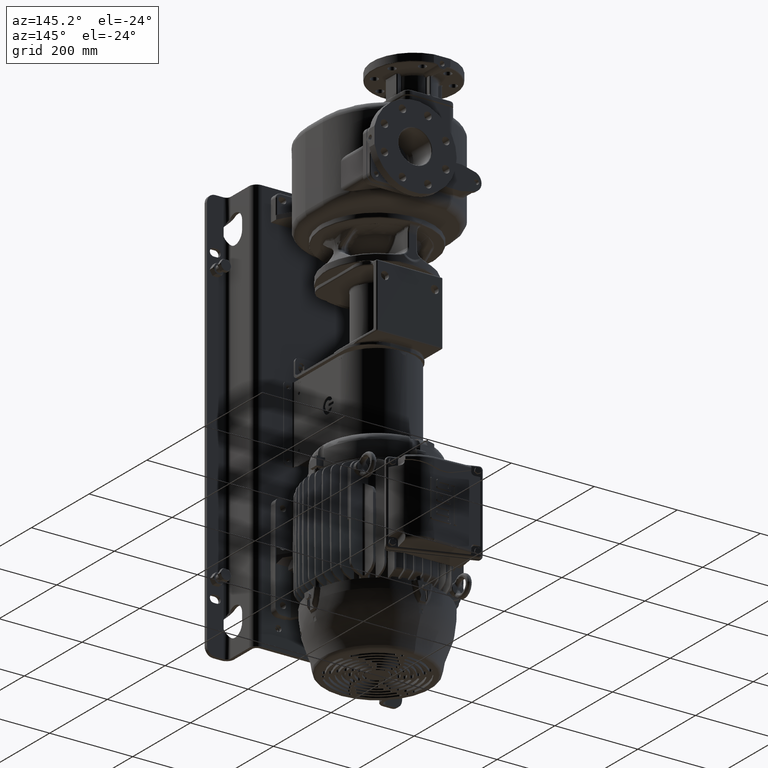
[diagram: clean part render]
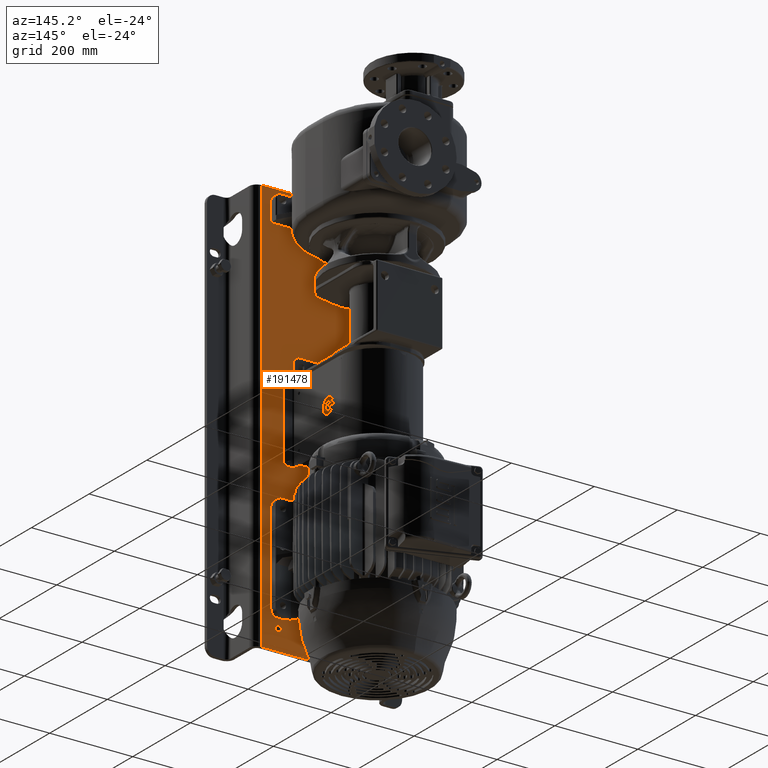
[diagram: same view with one face highlighted and labeled with its STEP entity id]
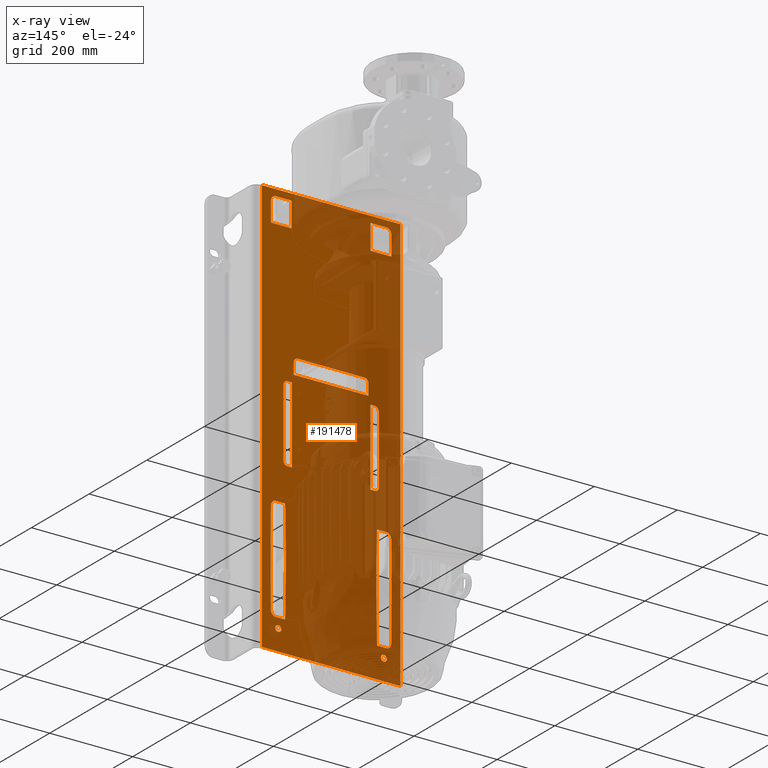
[diagram: x-ray of the same camera — body ghosted, the highlighted face saturated]
A machine part, auxiliary view. The second image highlights one B-rep face of the part: STEP entity #191478.
The next image is the same camera in x-ray: the body ghosted, the highlighted face saturated — about 63% of this face is hidden behind the body in this view.
In plain terms, the highlighted planar face has unit normal (0, 1, 0).
Its self-contained STEP definition (entity closure, byte-faithful):
#57438=DIRECTION('',(1.E0,0.E0,0.E0));
#57439=VECTOR('',#57438,5.E1);
#57440=CARTESIAN_POINT('',(9.5E1,0.E0,-4.5E1));
#57441=LINE('',#57440,#57439);
#57459=DIRECTION('',(0.E0,0.E0,-1.E0));
#57460=VECTOR('',#57459,1.E3);
#57461=CARTESIAN_POINT('',(-1.67E2,0.E0,3.05E1));
#57462=LINE('',#57461,#57460);
#57463=CARTESIAN_POINT('',(-1.27E2,0.E0,-9.195E2));
#57464=DIRECTION('',(0.E0,-1.E0,0.E0));
#57465=DIRECTION('',(1.E0,0.E0,0.E0));
#57466=AXIS2_PLACEMENT_3D('',#57463,#57464,#57465);
#57468=CARTESIAN_POINT('',(-1.27E2,0.E0,-9.195E2));
#57469=DIRECTION('',(0.E0,-1.E0,0.E0));
#57470=DIRECTION('',(-1.E0,0.E0,0.E0));
#57471=AXIS2_PLACEMENT_3D('',#57468,#57469,#57470);
#57473=CARTESIAN_POINT('',(1.27E2,0.E0,-9.195E2));
#57474=DIRECTION('',(0.E0,-1.E0,0.E0));
#57475=DIRECTION('',(1.E0,0.E0,0.E0));
#57476=AXIS2_PLACEMENT_3D('',#57473,#57474,#57475);
#57478=CARTESIAN_POINT('',(1.27E2,0.E0,-9.195E2));
#57479=DIRECTION('',(0.E0,-1.E0,0.E0));
#57480=DIRECTION('',(-1.E0,0.E0,0.E0));
#57481=AXIS2_PLACEMENT_3D('',#57478,#57479,#57480);
#57483=DIRECTION('',(1.E0,0.E0,0.E0));
#57484=VECTOR('',#57483,3.34E2);
#57485=CARTESIAN_POINT('',(-1.67E2,0.E0,3.05E1));
#57486=LINE('',#57485,#57484);
#57509=DIRECTION('',(0.E0,0.E0,-1.E0));
#57510=VECTOR('',#57509,1.E3);
#57511=CARTESIAN_POINT('',(1.67E2,0.E0,3.05E1));
#57512=LINE('',#57511,#57510);
#57527=DIRECTION('',(1.E0,0.E0,0.E0));
#57528=VECTOR('',#57527,3.34E2);
#57529=CARTESIAN_POINT('',(-1.67E2,0.E0,-9.695E2));
#57530=LINE('',#57529,#57528);
#61643=CARTESIAN_POINT('',(1.05E2,-5.684341886081E-13,-3.885E2));
#61644=DIRECTION('',(0.E0,-1.E0,0.E0));
#61645=DIRECTION('',(1.E0,0.E0,0.E0));
#61646=AXIS2_PLACEMENT_3D('',#61643,#61644,#61645);
#61648=DIRECTION('',(1.E0,-2.644252338458E-14,0.E0));
#61649=VECTOR('',#61648,1.04E1);
#61650=CARTESIAN_POINT('',(9.46E1,2.750022431997E-13,-3.785E2));
#61651=LINE('',#61650,#61649);
#61678=DIRECTION('',(0.E0,0.E0,1.E0));
#61679=VECTOR('',#61678,1.84E2);
#61680=CARTESIAN_POINT('',(9.46E1,2.804423360203E-13,-5.625E2));
#61681=LINE('',#61680,#61679);
#61695=DIRECTION('',(1.E0,-2.696560923272E-14,0.E0));
#61696=VECTOR('',#61695,1.04E1);
#61697=CARTESIAN_POINT('',(9.46E1,2.804423360203E-13,-5.625E2));
#61698=LINE('',#61697,#61696);
#61703=CARTESIAN_POINT('',(1.05E2,-5.684341886081E-13,-5.525E2));
#61704=DIRECTION('',(0.E0,-1.E0,0.E0));
#61705=DIRECTION('',(0.E0,0.E0,-1.E0));
#61706=AXIS2_PLACEMENT_3D('',#61703,#61704,#61705);
#61708=DIRECTION('',(0.E0,0.E0,1.E0));
#61709=VECTOR('',#61708,1.64E2);
#61710=CARTESIAN_POINT('',(1.15E2,0.E0,-5.525E2));
#61711=LINE('',#61710,#61709);
#64956=DIRECTION('',(0.E0,0.E0,1.E0));
#64957=VECTOR('',#64956,1.84E2);
#64958=CARTESIAN_POINT('',(-9.46E1,1.998401444325E-14,-5.625E2));
#64959=LINE('',#64958,#64957);
#65032=CARTESIAN_POINT('',(-1.05E2,-4.547473508865E-13,-3.885E2));
#65033=DIRECTION('',(0.E0,-1.E0,0.E0));
#65034=DIRECTION('',(3.765876499529E-13,0.E0,1.E0));
#65035=AXIS2_PLACEMENT_3D('',#65032,#65033,#65034);
#65037=DIRECTION('',(0.E0,0.E0,1.E0));
#65038=VECTOR('',#65037,1.64E2);
#65039=CARTESIAN_POINT('',(-1.15E2,0.E0,-5.525E2));
#65040=LINE('',#65039,#65038);
#65049=CARTESIAN_POINT('',(-1.05E2,-4.547473508865E-13,-5.525E2));
#65050=DIRECTION('',(0.E0,-1.E0,0.E0));
#65051=DIRECTION('',(-1.E0,0.E0,0.E0));
#65052=AXIS2_PLACEMENT_3D('',#65049,#65050,#65051);
#65054=DIRECTION('',(1.E0,0.E0,0.E0));
#65055=VECTOR('',#65054,1.04E1);
#65056=CARTESIAN_POINT('',(-1.05E2,0.E0,-5.625E2));
#65057=LINE('',#65056,#65055);
#65066=DIRECTION('',(1.E0,0.E0,0.E0));
#65067=VECTOR('',#65066,1.04E1);
#65068=CARTESIAN_POINT('',(-1.05E2,0.E0,-3.785E2));
#65069=LINE('',#65068,#65067);
#66730=CARTESIAN_POINT('',(-8.E1,0.E0,-3.335E2));
#66731=DIRECTION('',(0.E0,-1.E0,0.E0));
#66732=DIRECTION('',(0.E0,0.E0,1.E0));
#66733=AXIS2_PLACEMENT_3D('',#66730,#66731,#66732);
#66735=DIRECTION('',(0.E0,0.E0,1.E0));
#66736=VECTOR('',#66735,2.7E1);
#66737=CARTESIAN_POINT('',(-9.E1,1.421085471520E-14,-3.605E2));
#66738=LINE('',#66737,#66736);
#66751=DIRECTION('',(1.E0,0.E0,0.E0));
#66752=VECTOR('',#66751,1.8E2);
#66753=CARTESIAN_POINT('',(-9.E1,1.421085471520E-14,-3.605E2));
#66754=LINE('',#66753,#66752);
#66773=DIRECTION('',(0.E0,0.E0,-1.E0));
#66774=VECTOR('',#66773,2.7E1);
#66775=CARTESIAN_POINT('',(9.E1,0.E0,-3.335E2));
#66776=LINE('',#66775,#66774);
#66781=CARTESIAN_POINT('',(8.E1,0.E0,-3.335E2));
#66782=DIRECTION('',(0.E0,-1.E0,0.E0));
#66783=DIRECTION('',(1.E0,0.E0,0.E0));
#66784=AXIS2_PLACEMENT_3D('',#66781,#66782,#66783);
#66786=DIRECTION('',(1.E0,0.E0,0.E0));
#66787=VECTOR('',#66786,1.6E2);
#66788=CARTESIAN_POINT('',(-8.E1,0.E0,-3.235E2));
#66789=LINE('',#66788,#66787);
#68378=DIRECTION('',(-1.E0,0.E0,0.E0));
#68379=VECTOR('',#68378,3.8E1);
#68380=CARTESIAN_POINT('',(1.33E2,0.E0,1.5E1));
#68381=LINE('',#68380,#68379);
#68394=DIRECTION('',(0.E0,0.E0,-1.E0));
#68395=VECTOR('',#68394,6.E1);
#68396=CARTESIAN_POINT('',(9.5E1,0.E0,1.5E1));
#68397=LINE('',#68396,#68395);
#68414=DIRECTION('',(1.E0,0.E0,0.E0));
#68415=VECTOR('',#68414,5.E1);
#68416=CARTESIAN_POINT('',(-1.45E2,0.E0,-4.5E1));
#68417=LINE('',#68416,#68415);
#68435=DIRECTION('',(0.E0,0.E0,1.E0));
#68436=VECTOR('',#68435,6.E1);
#68437=CARTESIAN_POINT('',(-9.5E1,0.E0,-4.5E1));
#68438=LINE('',#68437,#68436);
#68455=DIRECTION('',(-1.E0,0.E0,0.E0));
#68456=VECTOR('',#68455,3.8E1);
#68457=CARTESIAN_POINT('',(-9.5E1,0.E0,1.5E1));
#68458=LINE('',#68457,#68456);
#68471=CARTESIAN_POINT('',(-1.33E2,0.E0,3.E0));
#68472=DIRECTION('',(0.E0,-1.E0,0.E0));
#68473=DIRECTION('',(0.E0,0.E0,1.E0));
#68474=AXIS2_PLACEMENT_3D('',#68471,#68472,#68473);
#68485=DIRECTION('',(0.E0,0.E0,-1.E0));
#68486=VECTOR('',#68485,4.8E1);
#68487=CARTESIAN_POINT('',(-1.45E2,0.E0,3.E0));
#68488=LINE('',#68487,#68486);
#69381=DIRECTION('',(0.E0,0.E0,1.E0));
#69382=VECTOR('',#69381,4.8E1);
#69383=CARTESIAN_POINT('',(1.45E2,0.E0,-4.5E1));
#69384=LINE('',#69383,#69382);
#69401=CARTESIAN_POINT('',(1.33E2,0.E0,3.E0));
#69402=DIRECTION('',(0.E0,-1.E0,0.E0));
#69403=DIRECTION('',(1.E0,0.E0,0.E0));
#69404=AXIS2_PLACEMENT_3D('',#69401,#69402,#69403);
#70403=DIRECTION('',(-1.E0,0.E0,0.E0));
#70404=VECTOR('',#70403,2.568608262508E1);
#70405=CARTESIAN_POINT('',(1.363303942805E2,0.E0,-6.448410173308E2));
#70406=LINE('',#70405,#70404);
#70415=DIRECTION('',(-1.308959557134E-2,0.E0,-9.999143275740E-1));
#70416=VECTOR('',#70415,1.256197448175E2);
#70417=CARTESIAN_POINT('',(1.106443116554E2,2.213044562419E-14,
-6.448410173308E2));
#70418=LINE('',#70417,#70416);
#70423=DIRECTION('',(1.308959557134E-2,0.E0,-9.999143275740E-1));
#70424=VECTOR('',#70423,1.256197448175E2);
#70425=CARTESIAN_POINT('',(1.09E2,0.E0,-7.7045E2));
#70426=LINE('',#70425,#70424);
#70431=DIRECTION('',(1.E0,0.E0,0.E0));
#70432=VECTOR('',#70431,2.568608262508E1);
#70433=CARTESIAN_POINT('',(1.106443116554E2,-2.042810365310E-14,
-8.960589826692E2));
#70434=LINE('',#70433,#70432);
#70443=CARTESIAN_POINT('',(1.300220196316E2,0.E0,-8.8245E2));
#70444=DIRECTION('',(0.E0,1.E0,0.E0));
#70445=DIRECTION('',(9.999619230642E-1,0.E0,-8.726535498378E-3));
#70446=AXIS2_PLACEMENT_3D('',#70443,#70444,#70445);
#70478=DIRECTION('',(-8.726535498374E-3,0.E0,-9.999619230642E-1));
#70479=VECTOR('',#70478,1.121351677961E2);
#70480=CARTESIAN_POINT('',(1.46E2,0.E0,-7.7045E2));
#70481=LINE('',#70480,#70479);
#70486=DIRECTION('',(8.726535498374E-3,0.E0,-9.999619230642E-1));
#70487=VECTOR('',#70486,1.121351677961E2);
#70488=CARTESIAN_POINT('',(1.450214484776E2,0.E0,-6.583191019675E2));
#70489=LINE('',#70488,#70487);
#70494=CARTESIAN_POINT('',(1.300220196316E2,0.E0,-6.5845E2));
#70495=DIRECTION('',(0.E0,-1.E0,0.E0));
#70496=DIRECTION('',(9.999619230642E-1,0.E0,8.726535498363E-3));
#70497=AXIS2_PLACEMENT_3D('',#70494,#70495,#70496);
#72835=DIRECTION('',(8.726535498375E-3,0.E0,9.999619230642E-1));
#72836=VECTOR('',#72835,1.121351677961E2);
#72837=CARTESIAN_POINT('',(-1.46E2,0.E0,-7.7045E2));
#72838=LINE('',#72837,#72836);
#72839=DIRECTION('',(-8.726535498374E-3,0.E0,9.999619230642E-1));
#72840=VECTOR('',#72839,1.121351677961E2);
#72841=CARTESIAN_POINT('',(-1.450214484776E2,0.E0,-8.825808980325E2));
#72842=LINE('',#72841,#72840);
#72851=CARTESIAN_POINT('',(-1.300220196316E2,0.E0,-8.8245E2));
#72852=DIRECTION('',(0.E0,1.E0,0.E0));
#72853=DIRECTION('',(-4.205583099244E-1,0.E0,-9.072655112774E-1));
#72854=AXIS2_PLACEMENT_3D('',#72851,#72852,#72853);
#72886=DIRECTION('',(-1.E0,0.E0,0.E0));
#72887=VECTOR('',#72886,2.568608262508E1);
#72888=CARTESIAN_POINT('',(-1.106443116554E2,1.154631945610E-14,
-8.960589826692E2));
#72889=LINE('',#72888,#72887);
#72898=DIRECTION('',(1.308959557134E-2,0.E0,9.999143275740E-1));
#72899=VECTOR('',#72898,1.256197448175E2);
#72900=CARTESIAN_POINT('',(-1.106443116554E2,1.154631945610E-14,
-8.960589826692E2));
#72901=LINE('',#72900,#72899);
#72906=DIRECTION('',(-1.308959557134E-2,0.E0,9.999143275740E-1));
#72907=VECTOR('',#72906,1.256197448175E2);
#72908=CARTESIAN_POINT('',(-1.09E2,0.E0,-7.7045E2));
#72909=LINE('',#72908,#72907);
#72922=DIRECTION('',(1.E0,0.E0,0.E0));
#72923=VECTOR('',#72922,2.568608262508E1);
#72924=CARTESIAN_POINT('',(-1.363303942805E2,0.E0,-6.448410173308E2));
#72925=LINE('',#72924,#72923);
#72934=CARTESIAN_POINT('',(-1.300220196316E2,0.E0,-6.5845E2));
#72935=DIRECTION('',(0.E0,-1.E0,0.E0));
#72936=DIRECTION('',(-4.205583099244E-1,0.E0,9.072655112774E-1));
#72937=AXIS2_PLACEMENT_3D('',#72934,#72935,#72936);
#115629=CARTESIAN_POINT('',(-1.67E2,0.E0,3.05E1));
#115630=VERTEX_POINT('',#115629);
#115631=CARTESIAN_POINT('',(1.67E2,0.E0,3.05E1));
#115632=VERTEX_POINT('',#115631);
#115645=CARTESIAN_POINT('',(-1.67E2,0.E0,-9.695E2));
#115646=VERTEX_POINT('',#115645);
#115647=CARTESIAN_POINT('',(1.67E2,0.E0,-9.695E2));
#115648=VERTEX_POINT('',#115647);
#115943=CARTESIAN_POINT('',(-1.196E2,0.E0,-9.195E2));
#115944=CARTESIAN_POINT('',(-1.344E2,0.E0,-9.195E2));
#115945=VERTEX_POINT('',#115943);
#115946=VERTEX_POINT('',#115944);
#115947=CARTESIAN_POINT('',(1.344E2,0.E0,-9.195E2));
#115948=CARTESIAN_POINT('',(1.196E2,0.E0,-9.195E2));
#115949=VERTEX_POINT('',#115947);
#115950=VERTEX_POINT('',#115948);
#115967=CARTESIAN_POINT('',(1.45E2,0.E0,-4.5E1));
#115968=CARTESIAN_POINT('',(1.45E2,0.E0,3.E0));
#115969=VERTEX_POINT('',#115967);
#115970=VERTEX_POINT('',#115968);
#115971=CARTESIAN_POINT('',(1.33E2,0.E0,1.5E1));
#115972=CARTESIAN_POINT('',(9.5E1,0.E0,1.5E1));
#115973=VERTEX_POINT('',#115971);
#115974=VERTEX_POINT('',#115972);
#115975=CARTESIAN_POINT('',(-9.5E1,0.E0,1.5E1));
#115976=CARTESIAN_POINT('',(-1.33E2,0.E0,1.5E1));
#115977=VERTEX_POINT('',#115975);
#115978=VERTEX_POINT('',#115976);
#115979=CARTESIAN_POINT('',(-1.45E2,0.E0,3.E0));
#115980=CARTESIAN_POINT('',(-1.45E2,0.E0,-4.5E1));
#115981=VERTEX_POINT('',#115979);
#115982=VERTEX_POINT('',#115980);
#115983=CARTESIAN_POINT('',(-9.5E1,0.E0,-4.5E1));
#115984=VERTEX_POINT('',#115983);
#115985=CARTESIAN_POINT('',(9.5E1,0.E0,-4.5E1));
#115986=VERTEX_POINT('',#115985);
#116019=CARTESIAN_POINT('',(-9.E1,1.421085471520E-14,-3.605E2));
#116020=CARTESIAN_POINT('',(9.E1,1.421085471520E-14,-3.605E2));
#116021=VERTEX_POINT('',#116019);
#116022=VERTEX_POINT('',#116020);
#116023=CARTESIAN_POINT('',(-9.E1,0.E0,-3.335E2));
#116024=VERTEX_POINT('',#116023);
#116025=CARTESIAN_POINT('',(-8.E1,0.E0,-3.235E2));
#116026=CARTESIAN_POINT('',(8.E1,0.E0,-3.235E2));
#116027=VERTEX_POINT('',#116025);
#116028=VERTEX_POINT('',#116026);
#116029=CARTESIAN_POINT('',(9.E1,0.E0,-3.335E2));
#116030=VERTEX_POINT('',#116029);
#116039=CARTESIAN_POINT('',(1.450214484776E2,0.E0,-8.825808980325E2));
#116040=CARTESIAN_POINT('',(1.363303942805E2,0.E0,-8.960589826692E2));
#116041=VERTEX_POINT('',#116039);
#116042=VERTEX_POINT('',#116040);
#116043=CARTESIAN_POINT('',(-1.106443116554E2,1.154631945610E-14,
-8.960589826692E2));
#116044=CARTESIAN_POINT('',(-1.09E2,0.E0,-7.7045E2));
#116045=VERTEX_POINT('',#116043);
#116046=VERTEX_POINT('',#116044);
#116047=CARTESIAN_POINT('',(-1.106443116554E2,1.546910747644E-14,
-6.448410173308E2));
#116048=VERTEX_POINT('',#116047);
#116049=CARTESIAN_POINT('',(1.450214484776E2,0.E0,-6.583191019675E2));
#116050=CARTESIAN_POINT('',(1.363303942805E2,0.E0,-6.448410173308E2));
#116051=VERTEX_POINT('',#116049);
#116052=VERTEX_POINT('',#116050);
#116053=CARTESIAN_POINT('',(-1.363303942805E2,0.E0,-6.448410173308E2));
#116054=VERTEX_POINT('',#116053);
#116055=CARTESIAN_POINT('',(-1.46E2,0.E0,-7.7045E2));
#116056=CARTESIAN_POINT('',(-1.450214484776E2,0.E0,-6.583191019675E2));
#116057=VERTEX_POINT('',#116055);
#116058=VERTEX_POINT('',#116056);
#116059=CARTESIAN_POINT('',(1.106443116554E2,2.213044562419E-14,
-6.448410173308E2));
#116060=CARTESIAN_POINT('',(1.09E2,0.E0,-7.7045E2));
#116061=VERTEX_POINT('',#116059);
#116062=VERTEX_POINT('',#116060);
#116063=CARTESIAN_POINT('',(1.106443116554E2,-2.042810365310E-14,
-8.960589826692E2));
#116064=VERTEX_POINT('',#116063);
#116065=CARTESIAN_POINT('',(1.46E2,0.E0,-7.7045E2));
#116066=VERTEX_POINT('',#116065);
#116067=CARTESIAN_POINT('',(-1.363303942805E2,0.E0,-8.960589826692E2));
#116068=CARTESIAN_POINT('',(-1.450214484776E2,0.E0,-8.825808980325E2));
#116069=VERTEX_POINT('',#116067);
#116070=VERTEX_POINT('',#116068);
#116119=CARTESIAN_POINT('',(-9.46E1,1.998401444325E-14,-5.625E2));
#116120=CARTESIAN_POINT('',(-9.46E1,1.465494392505E-14,-3.785E2));
#116121=VERTEX_POINT('',#116119);
#116122=VERTEX_POINT('',#116120);
#116123=CARTESIAN_POINT('',(9.46E1,2.804423360203E-13,-5.625E2));
#116124=CARTESIAN_POINT('',(9.46E1,2.750022431997E-13,-3.785E2));
#116125=VERTEX_POINT('',#116123);
#116126=VERTEX_POINT('',#116124);
#116127=CARTESIAN_POINT('',(-1.05E2,0.E0,-3.785E2));
#116128=VERTEX_POINT('',#116127);
#116129=CARTESIAN_POINT('',(-1.15E2,0.E0,-5.525E2));
#116130=CARTESIAN_POINT('',(-1.15E2,0.E0,-3.885E2));
#116131=VERTEX_POINT('',#116129);
#116132=VERTEX_POINT('',#116130);
#116133=CARTESIAN_POINT('',(1.15E2,0.E0,-5.525E2));
#116134=CARTESIAN_POINT('',(1.15E2,0.E0,-3.885E2));
#116135=VERTEX_POINT('',#116133);
#116136=VERTEX_POINT('',#116134);
#116137=CARTESIAN_POINT('',(1.05E2,0.E0,-3.785E2));
#116138=VERTEX_POINT('',#116137);
#116139=CARTESIAN_POINT('',(-1.05E2,0.E0,-5.625E2));
#116140=VERTEX_POINT('',#116139);
#116141=CARTESIAN_POINT('',(1.05E2,0.E0,-5.625E2));
#116142=VERTEX_POINT('',#116141);
#191350=CARTESIAN_POINT('',(-1.67E2,0.E0,3.05E1));
#191351=DIRECTION('',(0.E0,1.E0,0.E0));
#191352=DIRECTION('',(1.E0,0.E0,0.E0));
#191353=AXIS2_PLACEMENT_3D('',#191350,#191351,#191352);
#191354=PLANE('',#191353);
#191356=ORIENTED_EDGE('',*,*,#191355,.F.);
#191358=ORIENTED_EDGE('',*,*,#191357,.T.);
#191360=ORIENTED_EDGE('',*,*,#191359,.T.);
#191362=ORIENTED_EDGE('',*,*,#191361,.F.);
#191363=EDGE_LOOP('',(#191356,#191358,#191360,#191362));
#191364=FACE_OUTER_BOUND('',#191363,.F.);
#191366=ORIENTED_EDGE('',*,*,#191365,.F.);
#191368=ORIENTED_EDGE('',*,*,#191367,.F.);
#191369=EDGE_LOOP('',(#191366,#191368));
#191370=FACE_BOUND('',#191369,.F.);
#191372=ORIENTED_EDGE('',*,*,#191371,.F.);
#191374=ORIENTED_EDGE('',*,*,#191373,.F.);
#191375=EDGE_LOOP('',(#191372,#191374));
#191376=FACE_BOUND('',#191375,.F.);
#191378=ORIENTED_EDGE('',*,*,#191377,.F.);
#191379=ORIENTED_EDGE('',*,*,#191336,.F.);
#191381=ORIENTED_EDGE('',*,*,#191380,.F.);
#191383=ORIENTED_EDGE('',*,*,#191382,.F.);
#191385=ORIENTED_EDGE('',*,*,#191384,.F.);
#191386=EDGE_LOOP('',(#191378,#191379,#191381,#191383,#191385));
#191387=FACE_BOUND('',#191386,.F.);
#191389=ORIENTED_EDGE('',*,*,#191388,.F.);
#191391=ORIENTED_EDGE('',*,*,#191390,.F.);
#191393=ORIENTED_EDGE('',*,*,#191392,.F.);
#191395=ORIENTED_EDGE('',*,*,#191394,.F.);
#191397=ORIENTED_EDGE('',*,*,#191396,.F.);
#191398=EDGE_LOOP('',(#191389,#191391,#191393,#191395,#191397));
#191399=FACE_BOUND('',#191398,.F.);
#191401=ORIENTED_EDGE('',*,*,#191400,.F.);
#191403=ORIENTED_EDGE('',*,*,#191402,.T.);
#191405=ORIENTED_EDGE('',*,*,#191404,.F.);
#191407=ORIENTED_EDGE('',*,*,#191406,.T.);
#191409=ORIENTED_EDGE('',*,*,#191408,.F.);
#191411=ORIENTED_EDGE('',*,*,#191410,.T.);
#191412=EDGE_LOOP('',(#191401,#191403,#191405,#191407,#191409,#191411));
#191413=FACE_BOUND('',#191412,.F.);
#191415=ORIENTED_EDGE('',*,*,#191414,.T.);
#191417=ORIENTED_EDGE('',*,*,#191416,.F.);
#191419=ORIENTED_EDGE('',*,*,#191418,.F.);
#191421=ORIENTED_EDGE('',*,*,#191420,.F.);
#191423=ORIENTED_EDGE('',*,*,#191422,.F.);
#191425=ORIENTED_EDGE('',*,*,#191424,.F.);
#191427=ORIENTED_EDGE('',*,*,#191426,.T.);
#191429=ORIENTED_EDGE('',*,*,#191428,.T.);
#191430=EDGE_LOOP('',(#191415,#191417,#191419,#191421,#191423,#191425,#191427,
#191429));
#191431=FACE_BOUND('',#191430,.F.);
#191433=ORIENTED_EDGE('',*,*,#191432,.F.);
#191435=ORIENTED_EDGE('',*,*,#191434,.T.);
#191437=ORIENTED_EDGE('',*,*,#191436,.T.);
#191439=ORIENTED_EDGE('',*,*,#191438,.T.);
#191441=ORIENTED_EDGE('',*,*,#191440,.T.);
#191443=ORIENTED_EDGE('',*,*,#191442,.F.);
#191445=ORIENTED_EDGE('',*,*,#191444,.T.);
#191447=ORIENTED_EDGE('',*,*,#191446,.F.);
#191448=EDGE_LOOP('',(#191433,#191435,#191437,#191439,#191441,#191443,#191445,
#191447));
#191449=FACE_BOUND('',#191448,.F.);
#191451=ORIENTED_EDGE('',*,*,#191450,.F.);
#191453=ORIENTED_EDGE('',*,*,#191452,.F.);
#191455=ORIENTED_EDGE('',*,*,#191454,.F.);
#191457=ORIENTED_EDGE('',*,*,#191456,.T.);
#191459=ORIENTED_EDGE('',*,*,#191458,.F.);
#191461=ORIENTED_EDGE('',*,*,#191460,.T.);
#191462=EDGE_LOOP('',(#191451,#191453,#191455,#191457,#191459,#191461));
#191463=FACE_BOUND('',#191462,.F.);
#191465=ORIENTED_EDGE('',*,*,#191464,.T.);
#191467=ORIENTED_EDGE('',*,*,#191466,.T.);
#191469=ORIENTED_EDGE('',*,*,#191468,.F.);
#191471=ORIENTED_EDGE('',*,*,#191470,.F.);
#191473=ORIENTED_EDGE('',*,*,#191472,.F.);
#191475=ORIENTED_EDGE('',*,*,#191474,.F.);
#191476=EDGE_LOOP('',(#191465,#191467,#191469,#191471,#191473,#191475));
#191477=FACE_BOUND('',#191476,.F.);
#191478=ADVANCED_FACE('',(#191364,#191370,#191376,#191387,#191399,#191413,
#191431,#191449,#191463,#191477),#191354,.T.);
#57467=CIRCLE('',#57466,7.4E0);
#57472=CIRCLE('',#57471,7.4E0);
#57477=CIRCLE('',#57476,7.4E0);
#57482=CIRCLE('',#57481,7.4E0);
#61647=CIRCLE('',#61646,1.E1);
#61707=CIRCLE('',#61706,1.E1);
#65036=CIRCLE('',#65035,1.E1);
#65053=CIRCLE('',#65052,1.E1);
#66734=CIRCLE('',#66733,1.E1);
#66785=CIRCLE('',#66784,1.E1);
#68475=CIRCLE('',#68474,1.2E1);
#69405=CIRCLE('',#69404,1.2E1);
#70447=CIRCLE('',#70446,1.5E1);
#70498=CIRCLE('',#70497,1.5E1);
#72855=CIRCLE('',#72854,1.5E1);
#72938=CIRCLE('',#72937,1.5E1);
#191336=EDGE_CURVE('',#115986,#115969,#57441,.T.);
#191355=EDGE_CURVE('',#115630,#115632,#57486,.T.);
#191357=EDGE_CURVE('',#115630,#115646,#57462,.T.);
#191359=EDGE_CURVE('',#115646,#115648,#57530,.T.);
#191361=EDGE_CURVE('',#115632,#115648,#57512,.T.);
#191365=EDGE_CURVE('',#115945,#115946,#57467,.T.);
#191367=EDGE_CURVE('',#115946,#115945,#57472,.T.);
#191371=EDGE_CURVE('',#115949,#115950,#57477,.T.);
#191373=EDGE_CURVE('',#115950,#115949,#57482,.T.);
#191377=EDGE_CURVE('',#115969,#115970,#69384,.T.);
#191380=EDGE_CURVE('',#115974,#115986,#68397,.T.);
#191382=EDGE_CURVE('',#115973,#115974,#68381,.T.);
#191384=EDGE_CURVE('',#115970,#115973,#69405,.T.);
#191388=EDGE_CURVE('',#115977,#115978,#68458,.T.);
#191390=EDGE_CURVE('',#115984,#115977,#68438,.T.);
#191392=EDGE_CURVE('',#115982,#115984,#68417,.T.);
#191394=EDGE_CURVE('',#115981,#115982,#68488,.T.);
#191396=EDGE_CURVE('',#115978,#115981,#68475,.T.);
#191400=EDGE_CURVE('',#116021,#116022,#66754,.T.);
#191402=EDGE_CURVE('',#116021,#116024,#66738,.T.);
#191404=EDGE_CURVE('',#116027,#116024,#66734,.T.);
#191406=EDGE_CURVE('',#116027,#116028,#66789,.T.);
#191408=EDGE_CURVE('',#116030,#116028,#66785,.T.);
#191410=EDGE_CURVE('',#116030,#116022,#66776,.T.);
#191414=EDGE_CURVE('',#116041,#116042,#70447,.T.);
#191416=EDGE_CURVE('',#116064,#116042,#70434,.T.);
#191418=EDGE_CURVE('',#116062,#116064,#70426,.T.);
#191420=EDGE_CURVE('',#116061,#116062,#70418,.T.);
#191422=EDGE_CURVE('',#116052,#116061,#70406,.T.);
#191424=EDGE_CURVE('',#116051,#116052,#70498,.T.);
#191426=EDGE_CURVE('',#116051,#116066,#70489,.T.);
#191428=EDGE_CURVE('',#116066,#116041,#70481,.T.);
#191432=EDGE_CURVE('',#116045,#116046,#72901,.T.);
#191434=EDGE_CURVE('',#116045,#116069,#72889,.T.);
#191436=EDGE_CURVE('',#116069,#116070,#72855,.T.);
#191438=EDGE_CURVE('',#116070,#116057,#72842,.T.);
#191440=EDGE_CURVE('',#116057,#116058,#72838,.T.);
#191442=EDGE_CURVE('',#116054,#116058,#72938,.T.);
#191444=EDGE_CURVE('',#116054,#116048,#72925,.T.);
#191446=EDGE_CURVE('',#116046,#116048,#72909,.T.);
#191450=EDGE_CURVE('',#116121,#116122,#64959,.T.);
#191452=EDGE_CURVE('',#116140,#116121,#65057,.T.);
#191454=EDGE_CURVE('',#116131,#116140,#65053,.T.);
#191456=EDGE_CURVE('',#116131,#116132,#65040,.T.);
#191458=EDGE_CURVE('',#116128,#116132,#65036,.T.);
#191460=EDGE_CURVE('',#116128,#116122,#65069,.T.);
#191464=EDGE_CURVE('',#116125,#116126,#61681,.T.);
#191466=EDGE_CURVE('',#116126,#116138,#61651,.T.);
#191468=EDGE_CURVE('',#116136,#116138,#61647,.T.);
#191470=EDGE_CURVE('',#116135,#116136,#61711,.T.);
#191472=EDGE_CURVE('',#116142,#116135,#61707,.T.);
#191474=EDGE_CURVE('',#116125,#116142,#61698,.T.);